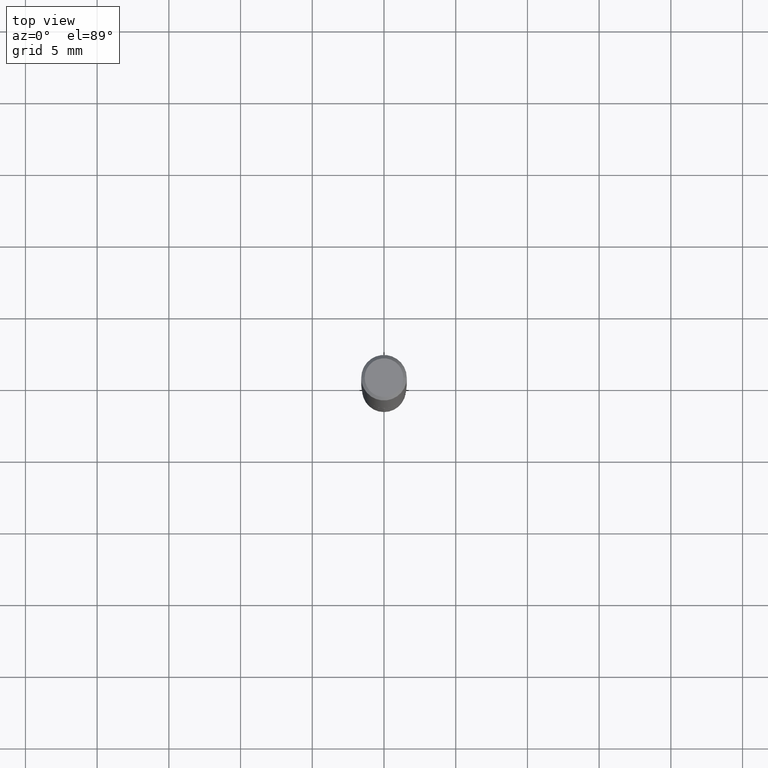
[diagram: clean part render]
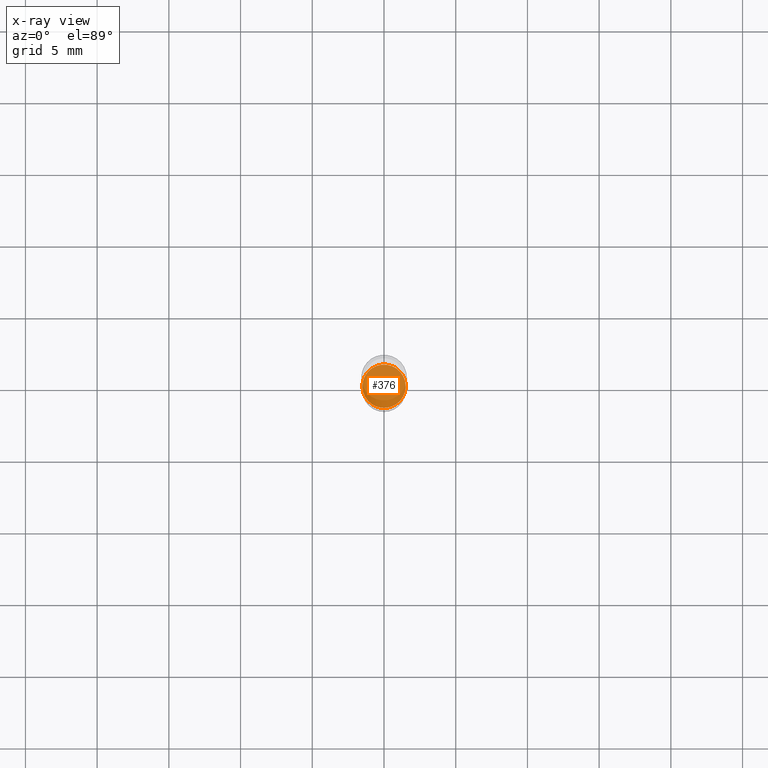
[diagram: x-ray — body ghosted, one internal face saturated and labeled with its STEP entity id]
A machine part, top view, then the same camera in x-ray: the body is ghosted and one INTERNAL B-rep face — a face not visible from any outside direction — is saturated and labeled: STEP entity #376.
In plain terms, the highlighted planar face has unit normal (-0, 0, 1).
Its self-contained STEP definition (entity closure, byte-faithful):
#9 = DIRECTION ( 'NONE',  ( 1.000000000000000000, -6.982962677686260400E-15, 0.000000000000000000 ) ) ;
#13 = DIRECTION ( 'NONE',  ( 1.000000000000000000, -6.982962677686260400E-15, 0.000000000000000000 ) ) ;
#26 = PLANE ( 'NONE',  #272 ) ;
#35 = ORIENTED_EDGE ( 'NONE', *, *, #276, .F. ) ;
#41 = CARTESIAN_POINT ( 'NONE',  ( 3.350292264473637048E-29, -4.783329434215109105E-15, -1.369999999999999885 ) ) ;
#86 = AXIS2_PLACEMENT_3D ( 'NONE', #361, #119, #13 ) ;
#119 = DIRECTION ( 'NONE',  ( -2.445468806185136597E-29, 3.491481338843145583E-15, 1.000000000000000000 ) ) ;
#123 = AXIS2_PLACEMENT_3D ( 'NONE', #261, #354, #9 ) ;
#145 = DIRECTION ( 'NONE',  ( -2.438088387897960049E-29, 3.491481338843145188E-15, 1.000000000000000000 ) ) ;
#215 = CARTESIAN_POINT ( 'NONE',  ( 0.05949999999999999040, -5.198815713537441154E-15, -1.369999999999999885 ) ) ;
#257 = FACE_OUTER_BOUND ( 'NONE', #431, .T. ) ;
#261 = CARTESIAN_POINT ( 'NONE',  ( 3.350292264473637048E-29, -4.783329434215109105E-15, -1.369999999999999885 ) ) ;
#264 = CIRCLE ( 'NONE', #86, 0.05949999999999999040 ) ;
#272 = AXIS2_PLACEMENT_3D ( 'NONE', #41, #145, #425 ) ;
#276 = EDGE_CURVE ( 'NONE', #358, #346, #264, .T. ) ;
#288 = ORIENTED_EDGE ( 'NONE', *, *, #420, .F. ) ;
#295 = CIRCLE ( 'NONE', #123, 0.05949999999999999040 ) ;
#329 = CARTESIAN_POINT ( 'NONE',  ( -0.05949999999999999040, -4.357907279263738312E-15, -1.369999999999999885 ) ) ;
#346 = VERTEX_POINT ( 'NONE', #329 ) ;
#354 = DIRECTION ( 'NONE',  ( -2.445468806185136597E-29, 3.491481338843145583E-15, 1.000000000000000000 ) ) ;
#358 = VERTEX_POINT ( 'NONE', #215 ) ;
#361 = CARTESIAN_POINT ( 'NONE',  ( 3.350292264473637048E-29, -4.783329434215109105E-15, -1.369999999999999885 ) ) ;
#376 = ADVANCED_FACE ( 'NONE', ( #257 ), #26, .F. ) ;
#420 = EDGE_CURVE ( 'NONE', #346, #358, #295, .T. ) ;
#425 = DIRECTION ( 'NONE',  ( 1.000000000000000000, -6.982962677686265922E-15, 4.876176775795935793E-29 ) ) ;
#431 = EDGE_LOOP ( 'NONE', ( #35, #288 ) ) ;